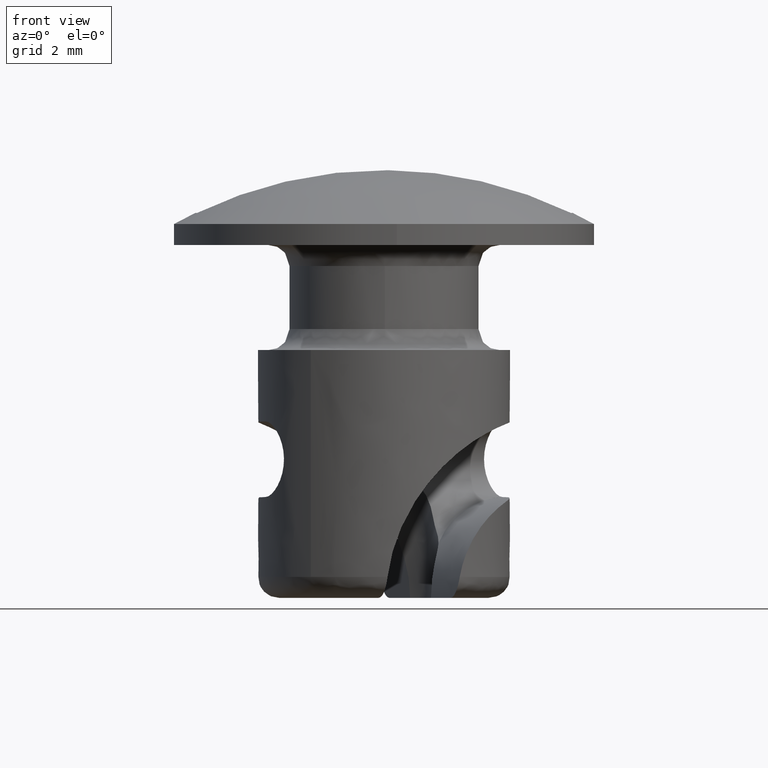
[diagram: clean part render]
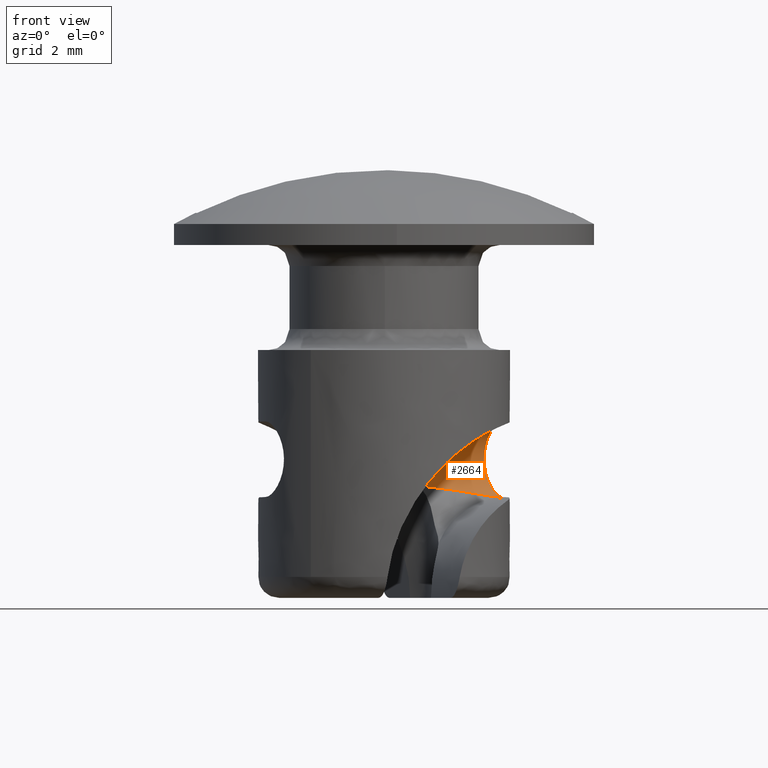
[diagram: same view with one face highlighted and labeled with its STEP entity id]
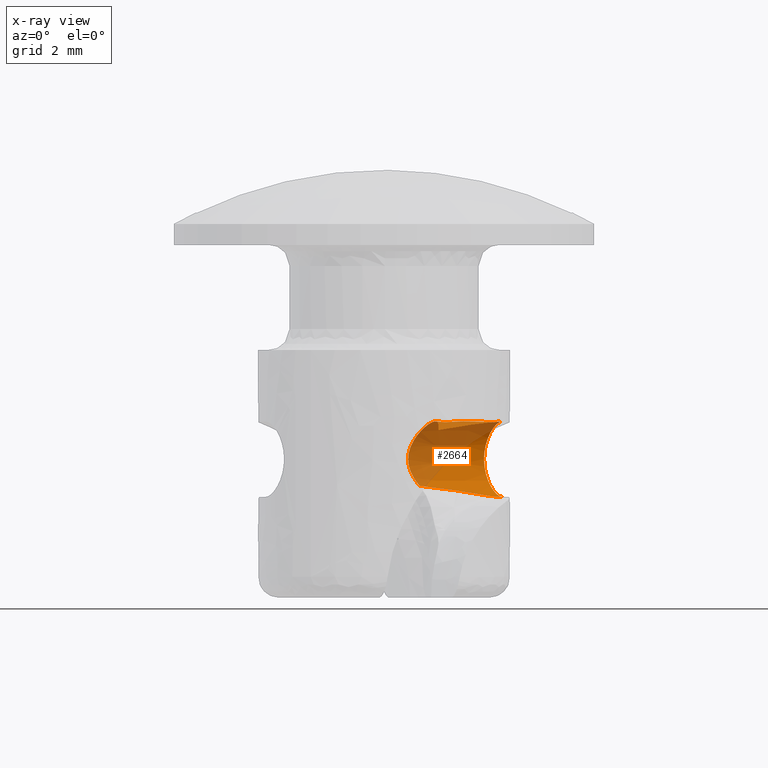
[diagram: x-ray of the same camera — body ghosted, the highlighted face saturated]
A machine part, front view. The second image highlights one B-rep face of the part: STEP entity #2664.
The next image is the same camera in x-ray: the body ghosted, the highlighted face saturated — about 57% of this face is hidden behind the body in this view.
In plain terms, the highlighted face is a freeform B-spline surface patch.
Its self-contained STEP definition (entity closure, byte-faithful):
#1556=CARTESIAN_POINT('',(2.819077636768695,1.026061049781646,-6.0));
#1557=VERTEX_POINT('',#1556);
#1699=CARTESIAN_POINT('',(0.845712621142271,0.987304493274831,-5.734273403432280));
#1700=VERTEX_POINT('',#1699);
#1715=CARTESIAN_POINT('',(0.845712621142271,0.987304493274831,-5.734273403432280));
#1716=CARTESIAN_POINT('',(0.977034305807002,1.019742838178830,-5.748342385766703));
#1717=CARTESIAN_POINT('',(1.221588542687426,1.080151002248327,-5.774542508984154));
#1718=CARTESIAN_POINT('',(1.569740274643713,1.147118667711508,-5.820588524003873));
#1719=CARTESIAN_POINT('',(1.878754289843645,1.185611639679461,-5.868322902291058));
#1720=CARTESIAN_POINT('',(2.156624753128566,1.194472563367058,-5.916084361140693));
#1721=CARTESIAN_POINT('',(2.405285216541695,1.171687988802557,-5.958170439689841));
#1722=CARTESIAN_POINT('',(2.627313002956708,1.120572824222544,-5.991775874476586));
#1723=CARTESIAN_POINT('',(2.757158247932412,1.056578206125243,-5.997344490399507));
#1724=CARTESIAN_POINT('',(2.819077636768695,1.026061049781646,-6.0));
#1725=B_SPLINE_CURVE_WITH_KNOTS('',3,(#1715,#1716,#1717,#1718,#1719,#1720,#1721,#1722,#1723,#1724),.UNSPECIFIED.,.F.,.U.,(4,1,1,1,1,1,1,4),(0.000006907679925,0.200270001181262,0.372947445700454,0.526132694251198,0.663839987856517,0.787391185823552,0.898613092551244,1.0),.UNSPECIFIED.);
#1726=EDGE_CURVE('',#1700,#1557,#1725,.T.);
#2381=CARTESIAN_POINT('',(2.870179426278867,1.036357527517550,-6.001034579350012));
#2382=CARTESIAN_POINT('',(2.813653369031812,1.015743209332032,-5.999483451577265));
#2383=CARTESIAN_POINT('',(2.700659790187816,0.974353747694051,-5.996751208667163));
#2384=CARTESIAN_POINT('',(2.474426252301761,0.892251747985827,-5.999738503831158));
#2385=CARTESIAN_POINT('',(2.078674717627553,0.748141464509481,-5.999250421081248));
#2386=CARTESIAN_POINT('',(1.513261242785241,0.542418378180577,-5.999836154605195));
#2387=CARTESIAN_POINT('',(1.060954261324764,0.377774523558823,-5.999813564966465));
#2388=CARTESIAN_POINT('',(0.834798879255520,0.295457792655599,-5.999797092910898));
#2389=CARTESIAN_POINT('',(2.861778924258369,1.059437701342202,-6.001403862709955));
#2390=CARTESIAN_POINT('',(2.805250270053654,1.038830518234323,-5.999519720901951));
#2391=CARTESIAN_POINT('',(2.692273581947921,0.997394649706130,-5.996724784829421));
#2392=CARTESIAN_POINT('',(2.466018877640059,0.915350804224081,-6.000191185816036));
#2393=CARTESIAN_POINT('',(2.070277309657489,0.771213137506250,-5.999442825707674));
#2394=CARTESIAN_POINT('',(1.504860693687102,0.565498681349899,-6.000091208489114));
#2395=CARTESIAN_POINT('',(1.052555482595930,0.400849962681781,-6.000035279118868));
#2396=CARTESIAN_POINT('',(0.826399940206711,0.318533672253768,-6.000021952721218));
#2397=CARTESIAN_POINT('',(2.845016185086545,1.105492917199427,-5.999521056823133));
#2398=CARTESIAN_POINT('',(2.788504575888841,1.084838903351706,-5.998545471633305));
#2399=CARTESIAN_POINT('',(2.675494977896049,1.043493453933216,-5.995996920959112));
#2400=CARTESIAN_POINT('',(2.449252338719906,0.961416459796892,-5.998726989527984));
#2401=CARTESIAN_POINT('',(2.053515058646242,0.817267012154219,-5.997951459145534));
#2402=CARTESIAN_POINT('',(1.488098165073954,0.611553318702306,-5.998533499249462));
#2403=CARTESIAN_POINT('',(1.035794484124289,0.446900396007826,-5.998476993513897));
#2404=CARTESIAN_POINT('',(0.809638938949909,0.364584113231974,-5.998459325236635));
#2405=CARTESIAN_POINT('',(2.820118120633914,1.173899740275230,-5.990626101804634));
#2406=CARTESIAN_POINT('',(2.763589233668226,1.153293196672430,-5.990070729530818));
#2407=CARTESIAN_POINT('',(2.650519218866389,1.112113740959006,-5.990633402098690));
#2408=CARTESIAN_POINT('',(2.424340238871845,1.029861844778333,-5.990107733665584));
#2409=CARTESIAN_POINT('',(2.028601818066043,0.885715531269310,-5.989927235570978));
#2410=CARTESIAN_POINT('',(1.463186902054069,0.679996404518803,-5.990175777797579));
#2411=CARTESIAN_POINT('',(1.010884819599487,0.515339089998181,-5.990200275774650));
#2412=CARTESIAN_POINT('',(0.784729339336719,0.433022628879264,-5.990163683398436));
#2413=CARTESIAN_POINT('',(2.795563912963429,1.241361825252839,-5.976287237570986));
#2414=CARTESIAN_POINT('',(2.739037003836597,1.220749847586163,-5.975972430818258));
#2415=CARTESIAN_POINT('',(2.625915438069951,1.179712026887604,-5.976840129989821));
#2416=CARTESIAN_POINT('',(2.399789396917857,1.097314682532196,-5.976104312143775));
#2417=CARTESIAN_POINT('',(2.004039208439522,0.953200700415619,-5.975823424606161));
#2418=CARTESIAN_POINT('',(1.438629566030498,0.747467084569998,-5.976033636798323));
#2419=CARTESIAN_POINT('',(0.986328251790989,0.582807659397255,-5.976039362542912));
#2420=CARTESIAN_POINT('',(0.760172901917482,0.500490840037033,-5.976001813628452));
#2421=CARTESIAN_POINT('',(2.763453709507767,1.329583823830223,-5.949590657701982));
#2422=CARTESIAN_POINT('',(2.706920644647363,1.308988758890961,-5.949454353079298));
#2423=CARTESIAN_POINT('',(2.593795272259639,1.267961396790710,-5.950138839209168));
#2424=CARTESIAN_POINT('',(2.367736037418120,1.185380503731077,-5.949029823849550));
#2425=CARTESIAN_POINT('',(1.971902919105573,1.041494369305532,-5.949548377486378));
#2426=CARTESIAN_POINT('',(1.406526503671253,0.835669463159646,-5.949369032211247));
#2427=CARTESIAN_POINT('',(0.954217209125499,0.671031963683110,-5.949469048172640));
#2428=CARTESIAN_POINT('',(0.728063560372124,0.588710470536936,-5.949411760496703));
#2429=CARTESIAN_POINT('',(2.740262306379433,1.393301636662538,-5.921087409188513));
#2430=CARTESIAN_POINT('',(2.683727075729566,1.372712522176852,-5.920992934873739));
#2431=CARTESIAN_POINT('',(2.570621927335011,1.331629595150046,-5.921438062336954));
#2432=CARTESIAN_POINT('',(2.344551903265557,1.249078345230259,-5.920597665445906));
#2433=CARTESIAN_POINT('',(1.948711190249566,1.105213077066661,-5.921100580965249));
#2434=CARTESIAN_POINT('',(1.383334205932536,0.899389733912104,-5.920905860976380));
#2435=CARTESIAN_POINT('',(0.931029468818065,0.734739713004596,-5.920980692783753));
#2436=CARTESIAN_POINT('',(0.704875032047425,0.652420384916579,-5.920926877607302));
#2437=CARTESIAN_POINT('',(2.680662924297248,1.557049481129725,-5.830285181388576));
#2438=CARTESIAN_POINT('',(2.624122724052519,1.536474020484363,-5.830300559122368));
#2439=CARTESIAN_POINT('',(2.511053251542801,1.495293074836605,-5.830225892646129));
#2440=CARTESIAN_POINT('',(2.284897814936590,1.412976493772362,-5.830466659420524));
#2441=CARTESIAN_POINT('',(1.889122061637104,1.268932750376580,-5.830318657270290));
#2442=CARTESIAN_POINT('',(1.323723456237660,1.063168810617113,-5.830316473617273));
#2443=CARTESIAN_POINT('',(0.871428700500099,0.898491366120668,-5.830277129174005));
#2444=CARTESIAN_POINT('',(0.645274352225410,0.816171794892204,-5.830237410134794));
#2445=CARTESIAN_POINT('',(2.642376030822553,1.662241784452280,-5.731194132588083));
#2446=CARTESIAN_POINT('',(2.585841187339805,1.641651606234403,-5.731186508447970));
#2447=CARTESIAN_POINT('',(2.472780492872480,1.600446543129881,-5.731151388350249));
#2448=CARTESIAN_POINT('',(2.246593711712162,1.518216080461358,-5.731249246806759));
#2449=CARTESIAN_POINT('',(1.850818240018012,1.374171563361806,-5.731305979379388));
#2450=CARTESIAN_POINT('',(1.285425487552626,1.168391542809157,-5.731206198941841));
#2451=CARTESIAN_POINT('',(0.833124974592550,1.003729916140795,-5.731201878370376));
#2452=CARTESIAN_POINT('',(0.606969385698312,0.921413753484166,-5.731163223198955));
#2453=CARTESIAN_POINT('',(2.585269084051464,1.819141723867308,-5.488345416937114));
#2454=CARTESIAN_POINT('',(2.528715494845765,1.798603049064719,-5.488364401829267));
#2455=CARTESIAN_POINT('',(2.415622443861317,1.757486884699544,-5.488430944800780));
#2456=CARTESIAN_POINT('',(2.189475859725466,1.675145981689527,-5.488415969668495));
#2457=CARTESIAN_POINT('',(1.793730925504425,1.531017563629553,-5.488460008811640));
#2458=CARTESIAN_POINT('',(1.228339953281240,1.325232651905013,-5.488371352943698));
#2459=CARTESIAN_POINT('',(0.776031076414811,1.160594004864743,-5.488362175224395));
#2460=CARTESIAN_POINT('',(0.549880133487372,1.078265077527996,-5.488327098248971));
#2461=CARTESIAN_POINT('',(2.567355707371309,1.868358288134020,-5.348294540338162));
#2462=CARTESIAN_POINT('',(2.510827661461684,1.847749433750256,-5.348327331193722));
#2463=CARTESIAN_POINT('',(2.397703266923593,1.806719385032059,-5.348264554522633));
#2464=CARTESIAN_POINT('',(2.171560052688319,1.724369223302626,-5.348364001709823));
#2465=CARTESIAN_POINT('',(1.775818363647177,1.580231889190259,-5.348396648700802));
#2466=CARTESIAN_POINT('',(1.210429075781060,1.374442349735871,-5.348320827401665));
#2467=CARTESIAN_POINT('',(0.758126431278848,1.209786579427365,-5.348299598591724));
#2468=CARTESIAN_POINT('',(0.531968981090765,1.127475530630065,-5.348269596492783));
#2469=CARTESIAN_POINT('',(2.555921745291953,1.899772819271818,-5.055460318942863));
#2470=CARTESIAN_POINT('',(2.499354559328034,1.879271501229852,-5.055464712578172));
#2471=CARTESIAN_POINT('',(2.386402515350908,1.837767923561134,-5.055491580186804));
#2472=CARTESIAN_POINT('',(2.160214910446406,1.755539724109576,-5.055510051512616));
#2473=CARTESIAN_POINT('',(1.764382928008594,1.611650468895989,-5.055627427902583));
#2474=CARTESIAN_POINT('',(1.199038015461449,1.405739009338146,-5.055531018530632));
#2475=CARTESIAN_POINT('',(0.746704602738223,1.241167773964283,-5.055477848907167));
#2476=CARTESIAN_POINT('',(0.520565661245896,1.158805872978116,-5.055493184928883));
#2477=CARTESIAN_POINT('',(2.562624347296469,1.881357584210361,-4.907159615476983));
#2478=CARTESIAN_POINT('',(2.506102144296682,1.860732676574750,-4.907179476043532));
#2479=CARTESIAN_POINT('',(2.392970803074586,1.819721713700859,-4.907239951500320));
#2480=CARTESIAN_POINT('',(2.166853372717493,1.737300711396886,-4.907280961076287));
#2481=CARTESIAN_POINT('',(1.771072292125066,1.593271604608126,-4.907379360476047));
#2482=CARTESIAN_POINT('',(1.205701592397171,1.387430994698651,-4.907252304107022));
#2483=CARTESIAN_POINT('',(0.753404342424410,1.222760403052425,-4.907239881356294));
#2484=CARTESIAN_POINT('',(0.527227472828660,1.140502708602690,-4.907232679730215));
#2485=CARTESIAN_POINT('',(2.599596112304481,1.779778564181922,-4.633033198470846));
#2486=CARTESIAN_POINT('',(2.543053165776541,1.759210648882504,-4.633071019109876));
#2487=CARTESIAN_POINT('',(2.429908057320225,1.718237511147976,-4.632932232545712));
#2488=CARTESIAN_POINT('',(2.203780216832478,1.635845110423239,-4.633123655938984));
#2489=CARTESIAN_POINT('',(1.808005138900949,1.491799511470524,-4.633227169848910));
#2490=CARTESIAN_POINT('',(1.242657081360482,1.285896692704908,-4.633051626017234));
#2491=CARTESIAN_POINT('',(0.790323126524853,1.121326946771609,-4.633035003986173));
#2492=CARTESIAN_POINT('',(0.564172757755828,1.038996441948660,-4.633063519826194));
#2493=CARTESIAN_POINT('',(2.629293626800535,1.698185369506582,-4.511281069324440));
#2494=CARTESIAN_POINT('',(2.572778247430634,1.677541714114754,-4.511365929128118));
#2495=CARTESIAN_POINT('',(2.459629788320195,1.636577782220443,-4.511277085911856));
#2496=CARTESIAN_POINT('',(2.233488950961008,1.554221090082111,-4.511420530565214));
#2497=CARTESIAN_POINT('',(1.837699695990018,1.410214442198534,-4.511517325421449));
#2498=CARTESIAN_POINT('',(1.272354010189349,1.204305107135837,-4.511274681393981));
#2499=CARTESIAN_POINT('',(0.820033592838932,1.039698167293047,-4.511350083055422));
#2500=CARTESIAN_POINT('',(0.593869401516953,0.957405639596239,-4.511327789677328));
#2501=CARTESIAN_POINT('',(2.705891124617342,1.487735617833214,-4.319779008296032));
#2502=CARTESIAN_POINT('',(2.649350797145154,1.467160506742184,-4.319841576724554));
#2503=CARTESIAN_POINT('',(2.536305810025585,1.425912288083907,-4.320022345327856));
#2504=CARTESIAN_POINT('',(2.310137381153935,1.343631402951161,-4.320065892525220));
#2505=CARTESIAN_POINT('',(1.914335243550162,1.199660149786048,-4.320141809437714));
#2506=CARTESIAN_POINT('',(1.348994742939928,0.993736568539460,-4.319910864723217));
#2507=CARTESIAN_POINT('',(0.896663358920755,0.829159759350830,-4.319933673094054));
#2508=CARTESIAN_POINT('',(0.670507529486951,0.746844257570793,-4.319942124113824));
#2509=CARTESIAN_POINT('',(2.751664236371961,1.361975112899805,-4.252974471685106));
#2510=CARTESIAN_POINT('',(2.695129481889720,1.341384690155214,-4.253048673962203));
#2511=CARTESIAN_POINT('',(2.582058835333173,1.300206970172407,-4.253259915358097));
#2512=CARTESIAN_POINT('',(2.355890472201435,1.217925904420862,-4.253236722818985));
#2513=CARTESIAN_POINT('',(1.960112318140467,1.073888757058532,-4.253449118213814));
#2514=CARTESIAN_POINT('',(1.394747183351057,0.868032857616677,-4.253197431649582));
#2515=CARTESIAN_POINT('',(0.942440375613513,0.703388525695404,-4.253256745254594));
#2516=CARTESIAN_POINT('',(0.716283940813494,0.621074687144237,-4.253198025653889));
#2517=CARTESIAN_POINT('',(2.850091604980605,1.091548325185510,-4.189446518557903));
#2518=CARTESIAN_POINT('',(2.793552023376641,1.070971164839774,-4.189431811157659));
#2519=CARTESIAN_POINT('',(2.680461897100334,1.029846964910524,-4.189309636744944));
#2520=CARTESIAN_POINT('',(2.454297690068772,0.947554480375415,-4.189529182047223));
#2521=CARTESIAN_POINT('',(2.058502346715070,0.803564560174423,-4.189646628745864));
#2522=CARTESIAN_POINT('',(1.493159474294859,0.597647495417724,-4.189444532538428));
#2523=CARTESIAN_POINT('',(1.040836625607603,0.433047235613435,-4.189404732340595));
#2524=CARTESIAN_POINT('',(0.814700927767589,0.350676422771875,-4.189323542045735));
#2525=CARTESIAN_POINT('',(2.901209954556377,0.951101910083259,-4.193369893336047));
#2526=CARTESIAN_POINT('',(2.844669345644000,0.930527572242265,-4.193344652973877));
#2527=CARTESIAN_POINT('',(2.731594672812912,0.889360914350268,-4.193413138267429));
#2528=CARTESIAN_POINT('',(2.505426267403712,0.807079964755014,-4.193454533570927));
#2529=CARTESIAN_POINT('',(2.109634581926016,0.663079994629172,-4.193545058505572));
#2530=CARTESIAN_POINT('',(1.544247819249110,0.457283517279184,-4.193471081136781));
#2531=CARTESIAN_POINT('',(1.091983417824344,0.292522675050820,-4.193272501006961));
#2532=CARTESIAN_POINT('',(0.865846391427506,0.210155512386639,-4.193163901720182));
#2533=CARTESIAN_POINT('',(2.998354703742999,0.684199087858032,-4.272025739358058));
#2534=CARTESIAN_POINT('',(2.941813446908223,0.663626530167980,-4.272038576250411));
#2535=CARTESIAN_POINT('',(2.828724602009852,0.622498809684193,-4.272067121835326));
#2536=CARTESIAN_POINT('',(2.602561587438646,0.540203048893417,-4.272195508651097));
#2537=CARTESIAN_POINT('',(2.206728465337804,0.396316924876126,-4.272442297017364));
#2538=CARTESIAN_POINT('',(1.641467028002934,0.190176119214361,-4.271787188771630));
#2539=CARTESIAN_POINT('',(1.189067827590961,0.025785633906150,-4.272153930887023));
#2540=CARTESIAN_POINT('',(0.963000772745917,-0.056773773885070,-4.271794981563470));
#2541=CARTESIAN_POINT('',(3.042868097010405,0.561899628655477,-4.345692556997372));
#2542=CARTESIAN_POINT('',(2.986325381786538,0.541331077853779,-4.345715321951564));
#2543=CARTESIAN_POINT('',(2.873240827531451,0.500191568932518,-4.345769189514488));
#2544=CARTESIAN_POINT('',(2.647071103551487,0.417914242078190,-4.345846851048041));
#2545=CARTESIAN_POINT('',(2.251271608547584,0.273935728434584,-4.345969083459926));
#2546=CARTESIAN_POINT('',(1.685842157005997,0.068256537696128,-4.345939456830291));
#2547=CARTESIAN_POINT('',(1.233704760510838,-0.096853247469769,-4.345362503616662));
#2548=CARTESIAN_POINT('',(1.007527542657474,-0.179109985090238,-4.345376566772947));
#2549=CARTESIAN_POINT('',(3.079425793254327,0.461458252428224,-4.447118363012487));
#2550=CARTESIAN_POINT('',(3.022882726968889,0.440890666159609,-4.447143326965255));
#2551=CARTESIAN_POINT('',(2.909796866888952,0.399754744960184,-4.447191746711412));
#2552=CARTESIAN_POINT('',(2.683622222561746,0.317490936639555,-4.447292533883553));
#2553=CARTESIAN_POINT('',(2.287824953166278,0.173506308191202,-4.447393234942278));
#2554=CARTESIAN_POINT('',(1.722353465034504,-0.032057388043920,-4.447561317639228));
#2555=CARTESIAN_POINT('',(1.270162674135834,-0.197020473392219,-4.447126724833598));
#2556=CARTESIAN_POINT('',(1.044055845348894,-0.279470603250956,-4.446896769020902));
#2557=B_SPLINE_SURFACE_WITH_KNOTS('',3,3,((#2381,#2389,#2397,#2405,#2413,#2421,#2429,#2437,#2445,#2453,#2461,#2469,#2477,#2485,#2493,#2501,#2509,#2517,#2525,#2533,#2541,#2549),(#2382,#2390,#2398,#2406,#2414,#2422,#2430,#2438,#2446,#2454,#2462,#2470,#2478,#2486,#2494,#2502,#2510,#2518,#2526,#2534,#2542,#2550),(#2383,#2391,#2399,#2407,#2415,#2423,#2431,#2439,#2447,#2455,#2463,#2471,#2479,#2487,#2495,#2503,#2511,#2519,#2527,#2535,#2543,#2551),(#2384,#2392,#2400,#2408,#2416,#2424,#2432,#2440,#2448,#2456,#2464,#2472,#2480,#2488,#2496,#2504,#2512,#2520,#2528,#2536,#2544,#2552),(#2385,#2393,#2401,#2409,#2417,#2425,#2433,#2441,#2449,#2457,#2465,#2473,#2481,#2489,#2497,#2505,#2513,#2521,#2529,#2537,#2545,#2553),(#2386,#2394,#2402,#2410,#2418,#2426,#2434,#2442,#2450,#2458,#2466,#2474,#2482,#2490,#2498,#2506,#2514,#2522,#2530,#2538,#2546,#2554),(#2387,#2395,#2403,#2411,#2419,#2427,#2435,#2443,#2451,#2459,#2467,#2475,#2483,#2491,#2499,#2507,#2515,#2523,#2531,#2539,#2547,#2555),(#2388,#2396,#2404,#2412,#2420,#2428,#2436,#2444,#2452,#2460,#2468,#2476,#2484,#2492,#2500,#2508,#2516,#2524,#2532,#2540,#2548,#2556)),.UNSPECIFIED.,.F.,.F.,.U.,(4,1,1,1,1,4),(4,1,1,1,1,2,2,2,2,2,2,2,4),(0.0,0.180502892837776,0.361005785675552,0.722011571351105,1.444023142702209,2.166034714053314),(0.0,0.073670736541743,0.147341473083486,0.221012209625229,0.294682946166972,0.442024419250458,0.884048838500916,1.326073257751373,1.768097677001831,2.210122096252289,2.652146515502746,3.094170934753204,3.536195354003662),.UNSPECIFIED.);
#2558=CARTESIAN_POINT('',(2.822162057853670,1.014812978952756,-4.200050929031289));
#2559=VERTEX_POINT('',#2558);
#2560=CARTESIAN_POINT('',(2.819077636768695,1.026061049781646,-6.0));
#2561=CARTESIAN_POINT('',(2.797463979171089,1.085464739461162,-6.000018086085476));
#2562=CARTESIAN_POINT('',(2.762605582109672,1.171679033032397,-5.990218091084494));
#2563=CARTESIAN_POINT('',(2.707279124423338,1.292800375605229,-5.954939885415632));
#2564=CARTESIAN_POINT('',(2.660950724522531,1.385715166991145,-5.913304676848258));
#2565=CARTESIAN_POINT('',(2.602183946454262,1.494033698544104,-5.843640163453288));
#2566=CARTESIAN_POINT('',(2.560195558849428,1.564437214475005,-5.778661587202548));
#2567=CARTESIAN_POINT('',(2.514876928577023,1.636150739021310,-5.695224062975206));
#2568=CARTESIAN_POINT('',(2.467354746193287,1.708269682873439,-5.592332834705904));
#2569=CARTESIAN_POINT('',(2.420011154006321,1.774448406189930,-5.440404758122634));
#2570=CARTESIAN_POINT('',(2.394169119860111,1.808458678951136,-5.297476428460682));
#2571=CARTESIAN_POINT('',(2.383381347915689,1.822150524114922,-5.190923944487786));
#2572=CARTESIAN_POINT('',(2.379180920556149,1.827233942294989,-5.064455100255301));
#2573=CARTESIAN_POINT('',(2.390285460132183,1.813614250129510,-4.915858042566186));
#2574=CARTESIAN_POINT('',(2.417618032197132,1.777447613480236,-4.777516314206652));
#2575=CARTESIAN_POINT('',(2.451925063704237,1.729719477352586,-4.657072484963682));
#2576=CARTESIAN_POINT('',(2.489532932553430,1.674993288976210,-4.557817584779168));
#2577=CARTESIAN_POINT('',(2.524836248180831,1.620521051361027,-4.485939954765863));
#2578=CARTESIAN_POINT('',(2.561941152248608,1.561445978562565,-4.419005154949642));
#2579=CARTESIAN_POINT('',(2.603781708120269,1.491036945080460,-4.354122994614465));
#2580=CARTESIAN_POINT('',(2.671631159883727,1.365369237595789,-4.273406146776569));
#2581=CARTESIAN_POINT('',(2.746700307929473,1.209133106600514,-4.213564865474518));
#2582=CARTESIAN_POINT('',(2.798266779280111,1.081292943283454,-4.199113421110448));
#2583=CARTESIAN_POINT('',(2.822162057853670,1.014812978952756,-4.200050929031289));
#2584=B_SPLINE_CURVE_WITH_KNOTS('',3,(#2560,#2561,#2562,#2563,#2564,#2565,#2566,#2567,#2568,#2569,#2570,#2571,#2572,#2573,#2574,#2575,#2576,#2577,#2578,#2579,#2580,#2581,#2582,#2583),.UNSPECIFIED.,.F.,.U.,(4,1,1,1,1,1,1,1,1,1,1,1,1,1,1,1,1,1,1,1,1,4),(-0.000002335298677,0.189627093131824,0.278864274602803,0.412719868901659,0.524266133919228,0.702740031829511,0.725051186254211,0.881216259161277,1.104308360350723,1.238163860478404,1.327401246052038,1.427793132262773,1.617422745493953,1.773587547364951,1.862824455248480,2.018988875165072,2.130535768823933,2.152846936025079,2.309012000943451,2.442866887333010,2.643650205887643,2.855589061642666),.UNSPECIFIED.);
#2585=EDGE_CURVE('',#1557,#2559,#2584,.T.);
#2586=ORIENTED_EDGE('',*,*,#2585,.T.);
#2587=CARTESIAN_POINT('',(1.291644792121556,-0.147152067553468,-4.411853175296565));
#2588=VERTEX_POINT('',#2587);
#2589=CARTESIAN_POINT('',(2.822162057853670,1.014812978952756,-4.200050929031289));
#2590=CARTESIAN_POINT('',(2.822544535274203,1.010183253697319,-4.200105144417544));
#2591=CARTESIAN_POINT('',(2.822924866683350,0.994493755940249,-4.200335380553874));
#2592=CARTESIAN_POINT('',(2.810060475254839,0.965484328024195,-4.201450070156995));
#2593=CARTESIAN_POINT('',(2.786161122902555,0.927761399851526,-4.203464652495842));
#2594=CARTESIAN_POINT('',(2.749412268735821,0.883725907899019,-4.206559146877041));
#2595=CARTESIAN_POINT('',(2.700811103895332,0.833518324154914,-4.210854701106601));
#2596=CARTESIAN_POINT('',(2.639781785186887,0.777072453181943,-4.216551494101584));
#2597=CARTESIAN_POINT('',(2.566405772235937,0.714488415441131,-4.223825435448411));
#2598=CARTESIAN_POINT('',(2.480569785281876,0.645841960174208,-4.232868451559705));
#2599=CARTESIAN_POINT('',(2.382229405894967,0.571254655989347,-4.243864870354915));
#2600=CARTESIAN_POINT('',(2.271361213483105,0.490801572120842,-4.257036901506421));
#2601=CARTESIAN_POINT('',(2.101342376557814,0.372561945519575,-4.278246175666603));
#2602=CARTESIAN_POINT('',(1.872775457874006,0.219259739541155,-4.310498900312369));
#2603=CARTESIAN_POINT('',(1.586511324851130,0.033596607608622,-4.357110275126406));
#2604=CARTESIAN_POINT('',(1.390752573193026,-0.086400513414391,-4.393453503705969));
#2605=CARTESIAN_POINT('',(1.291644792121556,-0.147152067553468,-4.411853175296565));
#2606=B_SPLINE_CURVE_WITH_KNOTS('',3,(#2589,#2590,#2591,#2592,#2593,#2594,#2595,#2596,#2597,#2598,#2599,#2600,#2601,#2602,#2603,#2604,#2605),.UNSPECIFIED.,.F.,.U.,(4,1,1,1,1,1,1,1,1,1,1,1,1,1,4),(0.005773400592547,0.012830645270503,0.029841114663945,0.052521111681365,0.081498757434691,0.117070108793561,0.159393074346630,0.208560553137082,0.264631433230616,0.327645250461281,0.397629774075710,0.474605228688582,0.645290540669114,0.820419433912496,1.0),.UNSPECIFIED.);
#2607=EDGE_CURVE('',#2559,#2588,#2606,.T.);
#2608=ORIENTED_EDGE('',*,*,#2607,.T.);
#2609=CARTESIAN_POINT('',(1.291644792121556,-0.147152067553468,-4.411853175296565));
#2610=CARTESIAN_POINT('',(1.297051892419131,-0.099690600949741,-4.375818859594808));
#2611=CARTESIAN_POINT('',(1.300076527868537,-0.049972991326714,-4.344048672360280));
#2612=CARTESIAN_POINT('',(1.299920539177730,0.053878288762678,-4.288869869972692));
#2613=CARTESIAN_POINT('',(1.296749016679503,0.108111887624526,-4.265418970192386));
#2614=CARTESIAN_POINT('',(1.282318597891929,0.221145214744424,-4.228116104682105));
#2615=CARTESIAN_POINT('',(1.271320027439146,0.277863598279979,-4.214947871463020));
#2616=CARTESIAN_POINT('',(1.248592654111943,0.363155726856515,-4.203610923082163));
#2617=CARTESIAN_POINT('',(1.239924811488141,0.391767387059254,-4.201241698745548));
#2618=CARTESIAN_POINT('',(1.220587904639258,0.448397581120832,-4.199510976191511));
#2619=CARTESIAN_POINT('',(1.199452513428998,0.503910488172743,-4.200771564009436));
#2620=CARTESIAN_POINT('',(1.174862240739377,0.557274997994095,-4.207797927192992));
#2621=CARTESIAN_POINT('',(1.148590259131256,0.609587667799398,-4.217687433364064));
#2622=CARTESIAN_POINT('',(1.134523450209343,0.635365614702218,-4.224113741892478));
#2623=CARTESIAN_POINT('',(1.090551703082801,0.709949770479276,-4.247391681435941));
#2624=CARTESIAN_POINT('',(1.059089209081760,0.755799074992527,-4.268028646944803));
#2625=CARTESIAN_POINT('',(1.009465817034853,0.819575690752982,-4.306094787576173));
#2626=CARTESIAN_POINT('',(0.992441984709177,0.840074971915154,-4.320050484429028));
#2627=CARTESIAN_POINT('',(0.958292171951863,0.878830566507716,-4.349852291528336));
#2628=CARTESIAN_POINT('',(0.923956743999569,0.915473475026663,-4.381591886267340));
#2629=CARTESIAN_POINT('',(0.889538389936035,0.948291381532926,-4.417093786949933));
#2630=CARTESIAN_POINT('',(0.855238388819231,0.979337730178232,-4.454495480446136));
#2631=CARTESIAN_POINT('',(0.838076516561348,0.994031237414912,-4.474234443939913));
#2632=CARTESIAN_POINT('',(0.787641411109179,1.035134001846178,-4.535720723755743));
#2633=CARTESIAN_POINT('',(0.755469903155192,1.058564213946992,-4.579560085965352));
#2634=CARTESIAN_POINT('',(0.710717469113170,1.088670713075340,-4.650040993839911));
#2635=CARTESIAN_POINT('',(0.696390539448999,1.097859044037042,-4.674329367123045));
#2636=CARTESIAN_POINT('',(0.669252637783106,1.114609873825751,-4.724686265406469));
#2637=CARTESIAN_POINT('',(0.656418123787193,1.122182806706005,-4.750838212815545));
#2638=CARTESIAN_POINT('',(0.621565567352693,1.142091180715652,-4.830616193009193));
#2639=CARTESIAN_POINT('',(0.602873974308460,1.151841275880613,-4.886008351412685));
#2640=CARTESIAN_POINT('',(0.584195636008201,1.161363120350435,-4.973239566941524));
#2641=CARTESIAN_POINT('',(0.579597888622572,1.163647587439131,-5.002917103349467));
#2642=CARTESIAN_POINT('',(0.574096821326846,1.166371407396381,-5.061871013860827));
#2643=CARTESIAN_POINT('',(0.572185635261081,1.167303766887993,-5.120862292530231));
#2644=CARTESIAN_POINT('',(0.577502580523150,1.164695506002142,-5.179928532631553));
#2645=CARTESIAN_POINT('',(0.586418137039244,1.160232140894141,-5.239032480173057));
#2646=CARTESIAN_POINT('',(0.592632272718060,1.157091922741059,-5.268228726486612));
#2647=CARTESIAN_POINT('',(0.607967714318262,1.149108344189368,-5.325146901000410));
#2648=CARTESIAN_POINT('',(0.617109216503827,1.144254192147126,-5.353010373738198));
#2649=CARTESIAN_POINT('',(0.637940351301032,1.132772505634357,-5.407660805494833));
#2650=CARTESIAN_POINT('',(0.649700164799110,1.126101851403519,-5.434578192203276));
#2651=CARTESIAN_POINT('',(0.687611499049415,1.103654457623105,-5.512479171673049));
#2652=CARTESIAN_POINT('',(0.716375511652034,1.085466428937557,-5.560901562190614));
#2653=CARTESIAN_POINT('',(0.762808965587370,1.052843907013068,-5.629259383695871));
#2654=CARTESIAN_POINT('',(0.778846881723279,1.041072624848527,-5.651322205832188));
#2655=CARTESIAN_POINT('',(0.811830348968741,1.015561992135393,-5.694060032708834));
#2656=CARTESIAN_POINT('',(0.828747437043588,1.001836656767076,-5.714685175892342));
#2657=CARTESIAN_POINT('',(0.845712621142271,0.987304493274831,-5.734273403432280));
#2658=B_SPLINE_CURVE_WITH_KNOTS('',3,(#2609,#2610,#2611,#2612,#2613,#2614,#2615,#2616,#2617,#2618,#2619,#2620,#2621,#2622,#2623,#2624,#2625,#2626,#2627,#2628,#2629,#2630,#2631,#2632,#2633,#2634,#2635,#2636,#2637,#2638,#2639,#2640,#2641,#2642,#2643,#2644,#2645,#2646,#2647,#2648,#2649,#2650,#2651,#2652,#2653,#2654,#2655,#2656,#2657),.UNSPECIFIED.,.F.,.U.,(4,2,2,2,2,1,2,2,2,2,1,2,2,2,2,2,2,2,1,2,2,2,2,2,2,4),(0.0,0.062500000000000,0.125000000000000,0.187500000000000,0.218750000000000,0.249999999999999,0.281249999999999,0.312499999999999,0.374999999999999,0.406249999999999,0.437499999999999,0.468749999999999,0.499999999999999,0.562499999999999,0.593749999999999,0.625000000000000,0.687500000000000,0.718750000000000,0.750000000000000,0.781250000000000,0.812500000000001,0.843750000000001,0.875000000000001,0.937500000000000,0.968750000000000,1.0),.UNSPECIFIED.);
#2659=EDGE_CURVE('',#2588,#1700,#2658,.T.);
#2660=ORIENTED_EDGE('',*,*,#2659,.T.);
#2661=ORIENTED_EDGE('',*,*,#1726,.T.);
#2662=EDGE_LOOP('',(#2586,#2608,#2660,#2661));
#2663=FACE_OUTER_BOUND('',#2662,.T.);
#2664=ADVANCED_FACE('',(#2663),#2557,.F.);